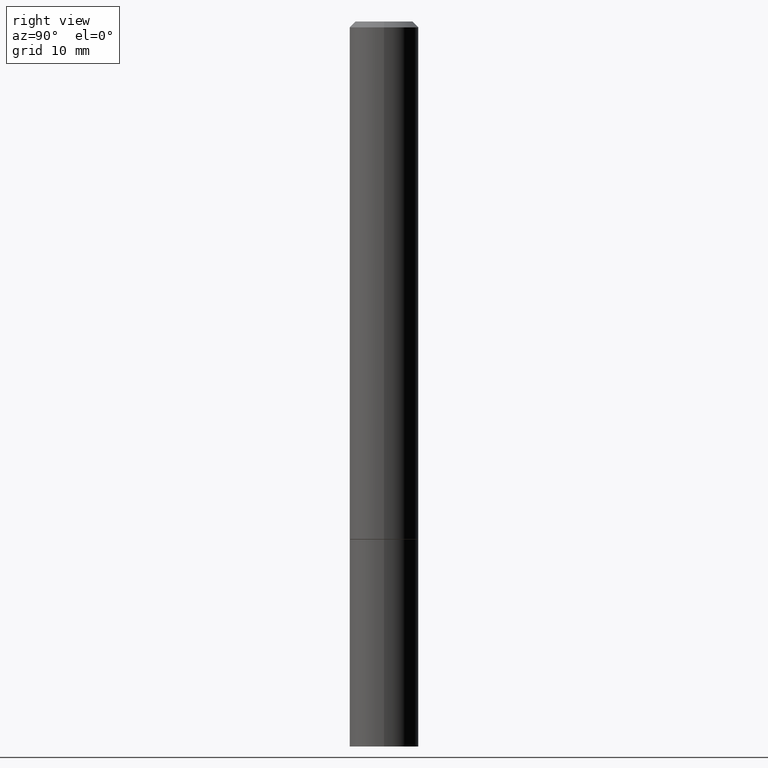
[diagram: clean part render]
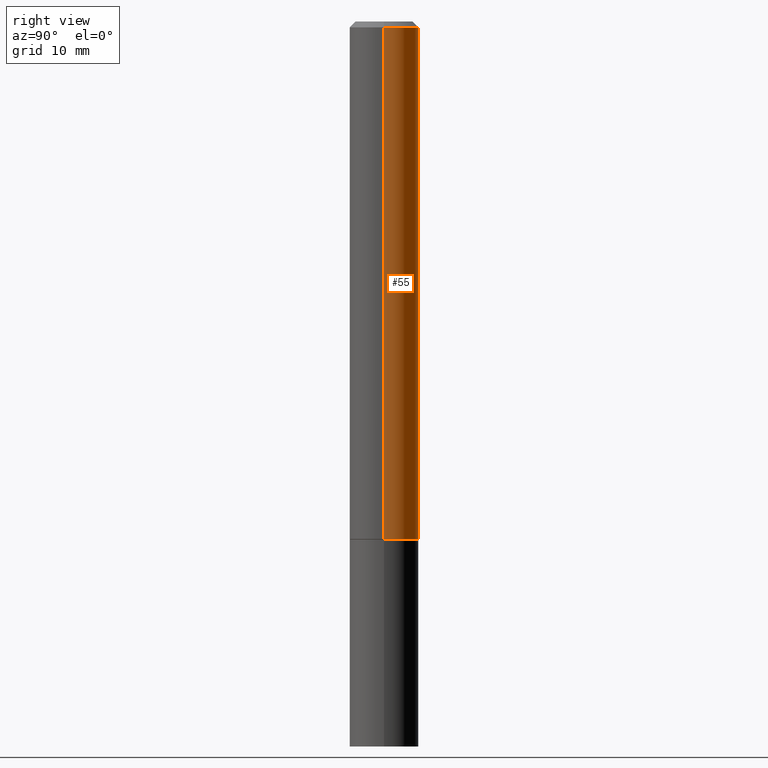
[diagram: same view with one face highlighted and labeled with its STEP entity id]
A machine part, right view. The second image highlights one B-rep face of the part: STEP entity #55.
In plain terms, the highlighted cylindrical surface (edge-blend (fillet) strip) has radius 2.9997 mm, axis along (-0, 0, 1).
Its self-contained STEP definition (entity closure, byte-faithful):
#8 = VECTOR ( 'NONE', #201, 39.37007874015748143 ) ;
#11 = ORIENTED_EDGE ( 'NONE', *, *, #253, .F. ) ;
#15 = EDGE_CURVE ( 'NONE', #124, #181, #101, .T. ) ;
#21 = CIRCLE ( 'NONE', #190, 0.1180999999999997746 ) ;
#30 = CARTESIAN_POINT ( 'NONE',  ( 4.890937612370281041E-31, -6.982962677686302702E-17, -0.02000000000000003511 ) ) ;
#32 = ORIENTED_EDGE ( 'NONE', *, *, #187, .T. ) ;
#55 = ADVANCED_FACE ( 'NONE', ( #277 ), #279, .T. ) ;
#101 = LINE ( 'NONE', #214, #255 ) ;
#110 = CARTESIAN_POINT ( 'NONE',  ( 0.1180999999999999966, -7.006704750790422825E-15, -1.770600000000000174 ) ) ;
#111 = CARTESIAN_POINT ( 'NONE',  ( 0.000000000000000000, 0.000000000000000000, 0.000000000000000000 ) ) ;
#121 = CIRCLE ( 'NONE', #128, 0.1180999999999999966 ) ;
#124 = VERTEX_POINT ( 'NONE', #110 ) ;
#128 = AXIS2_PLACEMENT_3D ( 'NONE', #174, #287, #203 ) ;
#174 = CARTESIAN_POINT ( 'NONE',  ( 4.329947068231403160E-29, -6.182016858555674562E-15, -1.770600000000000174 ) ) ;
#181 = VERTEX_POINT ( 'NONE', #227 ) ;
#187 = EDGE_CURVE ( 'NONE', #124, #327, #121, .T. ) ;
#190 = AXIS2_PLACEMENT_3D ( 'NONE', #30, #284, #206 ) ;
#196 = DIRECTION ( 'NONE',  ( 1.000000000000000000, -6.982962677686266711E-15, 4.876176775795935232E-29 ) ) ;
#199 = DIRECTION ( 'NONE',  ( -2.445468806185136597E-29, 3.491481338843145583E-15, 1.000000000000000000 ) ) ;
#201 = DIRECTION ( 'NONE',  ( -2.445468806185136877E-29, 3.491481338843145188E-15, 1.000000000000000000 ) ) ;
#203 = DIRECTION ( 'NONE',  ( 1.000000000000000000, -6.982962677686265133E-15, 0.000000000000000000 ) ) ;
#206 = DIRECTION ( 'NONE',  ( 1.000000000000000000, -6.982962677686265922E-15, 0.000000000000000000 ) ) ;
#214 = CARTESIAN_POINT ( 'NONE',  ( 0.1180999999999998995, -8.246878922347473751E-16, 5.758764772214994835E-30 ) ) ;
#227 = CARTESIAN_POINT ( 'NONE',  ( 0.1180999999999997746, -8.800544403136792597E-16, -0.02000000000000003511 ) ) ;
#230 = LINE ( 'NONE', #340, #8 ) ;
#240 = VERTEX_POINT ( 'NONE', #365 ) ;
#242 = EDGE_LOOP ( 'NONE', ( #32, #300, #11, #297 ) ) ;
#253 = EDGE_CURVE ( 'NONE', #181, #240, #21, .T. ) ;
#255 = VECTOR ( 'NONE', #325, 39.37007874015748143 ) ;
#277 = FACE_OUTER_BOUND ( 'NONE', #242, .T. ) ;
#279 = CYLINDRICAL_SURFACE ( 'NONE', #352, 0.1180999999999998995 ) ;
#284 = DIRECTION ( 'NONE',  ( -2.445468806185136597E-29, 3.491481338843145583E-15, 1.000000000000000000 ) ) ;
#287 = DIRECTION ( 'NONE',  ( -2.445468806185136597E-29, 3.491481338843145583E-15, 1.000000000000000000 ) ) ;
#292 = EDGE_CURVE ( 'NONE', #327, #240, #230, .T. ) ;
#297 = ORIENTED_EDGE ( 'NONE', *, *, #15, .F. ) ;
#300 = ORIENTED_EDGE ( 'NONE', *, *, #292, .T. ) ;
#325 = DIRECTION ( 'NONE',  ( -2.445468806185136877E-29, 3.491481338843145188E-15, 1.000000000000000000 ) ) ;
#327 = VERTEX_POINT ( 'NONE', #342 ) ;
#340 = CARTESIAN_POINT ( 'NONE',  ( -0.1180999999999998995, 8.391509709326776054E-16, -5.809262341591038879E-30 ) ) ;
#342 = CARTESIAN_POINT ( 'NONE',  ( -0.1180999999999999966, -2.286772271733587972E-15, -1.770600000000000174 ) ) ;
#352 = AXIS2_PLACEMENT_3D ( 'NONE', #111, #199, #196 ) ;
#365 = CARTESIAN_POINT ( 'NONE',  ( -0.1180999999999997746, 7.548582654578835839E-16, -0.02000000000000003511 ) ) ;